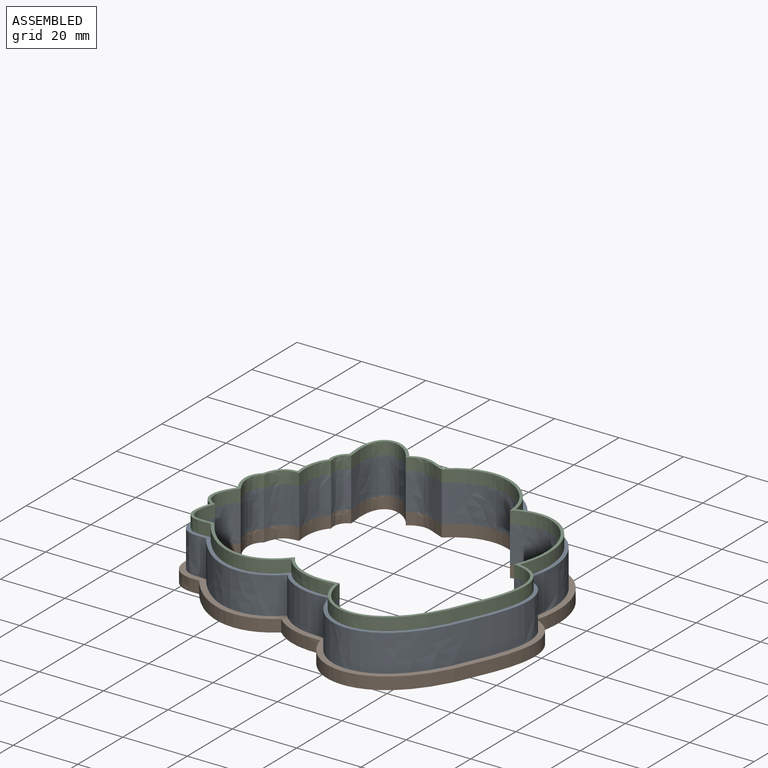
[diagram: assembled view]
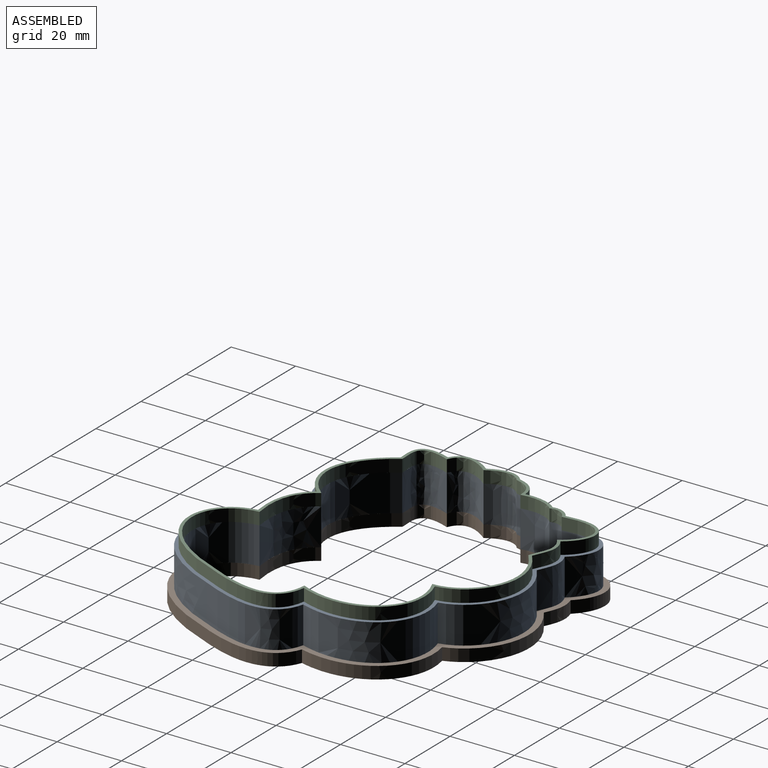
[diagram: assembled view, second angle]
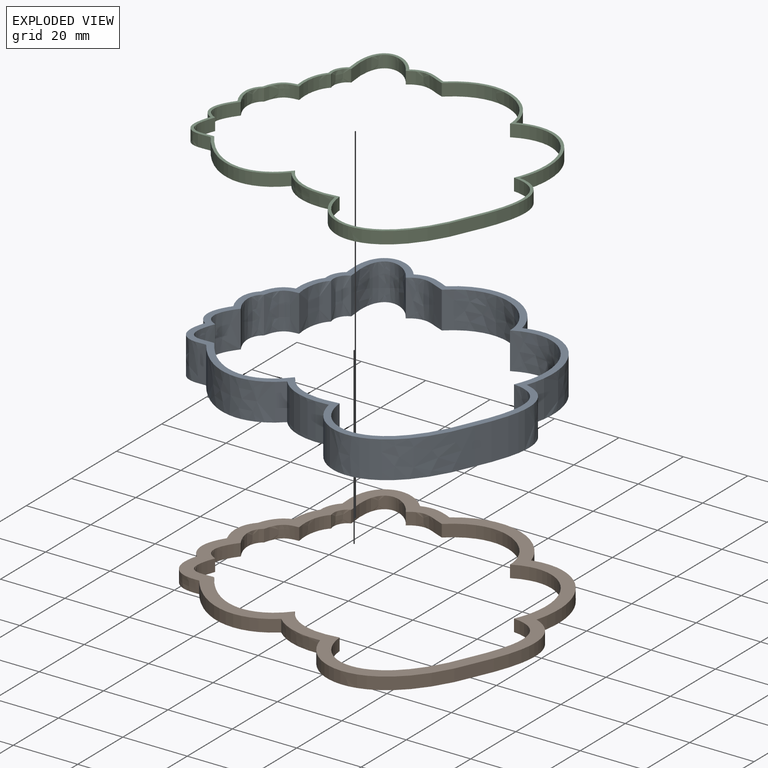
[diagram: exploded view]
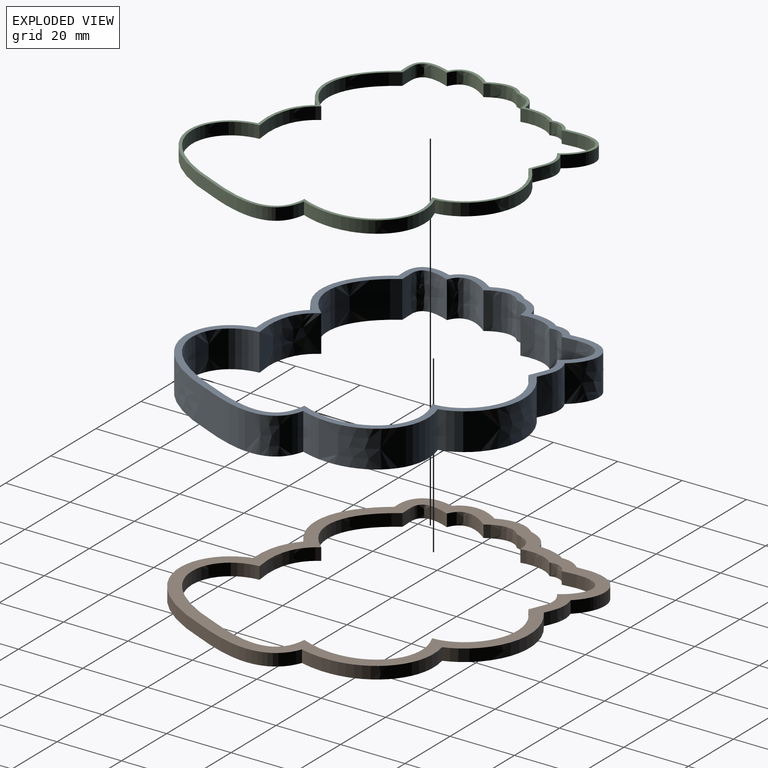
[diagram: exploded view, second angle]
ASSEMBLY  parts=3 mates=2
PART A: 30 faces, bbox 99.5x95.9x11.6 mm
  f0: plane 99.53x95.86mm, normal (0,0,1), area 668mm2, adj f2,f3,f4,f5,f6,f7,f8,f9
  f1: plane 99.53x95.86mm, normal (0,0,-1), area 668mm2, adj f2,f3,f4,f5,f6,f7,f8,f9
  f2: extruded ~30.38x14.27mm, area 438.5mm2, adj f0,f1,f3,f15
  f3: extruded ~11.43x10.74mm, area 129.2mm2, adj f0,f1,f2,f4
  f4: extruded ~15.04x13.48mm, area 308.3mm2, adj f0,f1,f3,f5
  f5: extruded ~11.43x6mm, area 77.6mm2, adj f0,f1,f4,f6
  f6: extruded ~11.43x9.5mm, area 114.6mm2, adj f0,f1,f5,f7
  f7: extruded ~11.43x6.55mm, area 110.6mm2, adj f0,f1,f6,f8
  f8: extruded ~11.43x11.3mm, area 139.8mm2, adj f0,f1,f7,f9
  f9: extruded ~12.47x11.43mm, area 161.5mm2, adj f0,f1,f8,f10
  f10: extruded ~11.43x10.59mm, area 195.5mm2, adj f0,f1,f9,f11
  f11: extruded ~29.56x11.5mm, area 402.9mm2, adj f0,f1,f10,f12
  f12: extruded ~16.78x11.43mm, area 210.3mm2, adj f0,f1,f11,f13
  f13: extruded ~37.54x23.01mm, area 629.1mm2, adj f0,f1,f12,f14
  f14: extruded ~27.78x11.43mm, area 373.2mm2, adj f0,f1,f13,f15
  f15: extruded ~28.37x22.2mm, area 496.2mm2, adj f0,f1,f2,f14
  f16: extruded ~28.23x15.17mm, area 432.9mm2, adj f0,f1,f17,f29
  f17: extruded ~11.7x11.43mm, area 143.6mm2, adj f0,f1,f16,f18
  f18: extruded ~12.55x12.46mm, area 284.5mm2, adj f0,f1,f17,f19
  f19: extruded ~11.43x5.47mm, area 75.8mm2, adj f0,f1,f18,f20
  f20: extruded ~11.43x10.72mm, area 130.6mm2, adj f0,f1,f19,f21
  f21: extruded ~11.43x6.78mm, area 114mm2, adj f0,f1,f20,f22
  f22: extruded ~11.43x10.29mm, area 130mm2, adj f0,f1,f21,f23
  f23: extruded ~11.43x11.38mm, area 157.2mm2, adj f0,f1,f22,f24
  f24: extruded ~11.43x9.51mm, area 183.6mm2, adj f0,f1,f23,f25
  f25: extruded ~28.63x11.47mm, area 401.2mm2, adj f0,f1,f24,f26
  f26: extruded ~18.34x11.43mm, area 237mm2, adj f0,f1,f25,f27
  f27: extruded ~33.92x21.78mm, area 591.8mm2, adj f0,f1,f26,f28
  f28: extruded ~25.39x11.43mm, area 360mm2, adj f0,f1,f27,f29
  f29: extruded ~27.94x21.89mm, area 501.9mm2, adj f0,f1,f16,f28
PART B: 30 faces, bbox 103.2x97.5x4 mm
  f0: plane 103.18x97.51mm, normal (0,0,1), area 1263.2mm2, adj f2,f3,f4,f5,f6,f7,f8,f9
  f1: plane 103.18x97.51mm, normal (0,0,-1), area 1263.2mm2, adj f2,f3,f4,f5,f6,f7,f8,f9
  f2: extruded ~31.89x13.82mm, area 148.5mm2, adj f0,f1,f3,f15
  f3: extruded ~10x3.81mm, area 39.6mm2, adj f0,f1,f2,f4
  f4: extruded ~17.29x14.54mm, area 111.4mm2, adj f0,f1,f3,f5
  f5: extruded ~6.21x3.81mm, area 26.1mm2, adj f0,f1,f4,f6
  f6: extruded ~8.63x3.81mm, area 34.7mm2, adj f0,f1,f5,f7
  f7: extruded ~6.97x6.06mm, area 36.7mm2, adj f0,f1,f6,f8
  f8: extruded ~12.11x3.81mm, area 49.3mm2, adj f0,f1,f7,f9
  f9: extruded ~13.25x3.81mm, area 55.4mm2, adj f0,f1,f8,f10
  f10: extruded ~11.74x9.57mm, area 69.8mm2, adj f0,f1,f9,f11
  f11: extruded ~30.35x11.44mm, area 135.4mm2, adj f0,f1,f10,f12
  f12: extruded ~15.49x4.92mm, area 63.7mm2, adj f0,f1,f11,f13
  f13: extruded ~40.56x24.11mm, area 220.8mm2, adj f0,f1,f12,f14
  f14: extruded ~29.66x7.73mm, area 128.9mm2, adj f0,f1,f13,f15
  f15: extruded ~28.97x22.72mm, area 166.2mm2, adj f0,f1,f2,f14
  f16: extruded ~28.23x15.17mm, area 144.3mm2, adj f0,f1,f17,f29
  f17: extruded ~11.7x3.81mm, area 47.9mm2, adj f0,f1,f16,f18
  f18: extruded ~12.55x12.46mm, area 94.8mm2, adj f0,f1,f17,f19
  f19: extruded ~5.47x3.81mm, area 25.3mm2, adj f0,f1,f18,f20
  f20: extruded ~10.72x3.81mm, area 43.5mm2, adj f0,f1,f19,f21
  f21: extruded ~6.78x5.91mm, area 38mm2, adj f0,f1,f20,f22
  f22: extruded ~10.29x3.81mm, area 43.3mm2, adj f0,f1,f21,f23
  f23: extruded ~11.38x3.81mm, area 52.4mm2, adj f0,f1,f22,f24
  f24: extruded ~9.51x7.76mm, area 61.2mm2, adj f0,f1,f23,f25
  f25: extruded ~28.63x11.47mm, area 133.7mm2, adj f0,f1,f24,f26
  f26: extruded ~18.34x6.8mm, area 79mm2, adj f0,f1,f25,f27
  f27: extruded ~33.92x21.78mm, area 197.3mm2, adj f0,f1,f26,f28
  f28: extruded ~25.39x8.97mm, area 120mm2, adj f0,f1,f27,f29
  f29: extruded ~27.94x21.89mm, area 167.3mm2, adj f0,f1,f16,f28
PART C: 30 faces, bbox 97.9x95.9x4 mm
  f0: plane 97.94x95.88mm, normal (0,0,1), area 291.8mm2, adj f2,f3,f4,f5,f6,f7,f8,f9
  f1: plane 97.94x95.88mm, normal (0,0,-1), area 291.8mm2, adj f2,f3,f4,f5,f6,f7,f8,f9
  f2: extruded ~29.25x14.7mm, area 144.9mm2, adj f0,f1,f3,f15
  f3: extruded ~11.26x3.81mm, area 45.6mm2, adj f0,f1,f2,f4
  f4: extruded ~13.59x12.9mm, area 97.9mm2, adj f0,f1,f3,f5
  f5: extruded ~5.76x3.81mm, area 25.5mm2, adj f0,f1,f4,f6
  f6: extruded ~10.17x3.81mm, area 41mm2, adj f0,f1,f5,f7
  f7: extruded ~6.54x6.2mm, area 37.3mm2, adj f0,f1,f6,f8
  f8: extruded ~10.75x3.81mm, area 44.8mm2, adj f0,f1,f7,f9
  f9: extruded ~11.89x3.81mm, area 53mm2, adj f0,f1,f8,f10
  f10: extruded ~9.95x8.14mm, area 62.7mm2, adj f0,f1,f9,f11
  f11: extruded ~29.04x11.5mm, area 133.9mm2, adj f0,f1,f10,f12
  f12: extruded ~17.64x6.22mm, area 74.8mm2, adj f0,f1,f11,f13
  f13: extruded ~35.53x22.32mm, area 202.6mm2, adj f0,f1,f12,f14
  f14: extruded ~26.47x8.58mm, area 121.8mm2, adj f0,f1,f13,f15
  f15: extruded ~28.1x21.96mm, area 165.9mm2, adj f0,f1,f2,f14
  f16: extruded ~28.23x15.17mm, area 144.3mm2, adj f0,f1,f17,f29
  f17: extruded ~11.7x3.81mm, area 47.9mm2, adj f0,f1,f16,f18
  f18: extruded ~12.55x12.46mm, area 94.8mm2, adj f0,f1,f17,f19
  f19: extruded ~5.47x3.81mm, area 25.3mm2, adj f0,f1,f18,f20
  f20: extruded ~10.72x3.81mm, area 43.5mm2, adj f0,f1,f19,f21
  f21: extruded ~6.78x5.91mm, area 38mm2, adj f0,f1,f20,f22
  f22: extruded ~10.29x3.81mm, area 43.3mm2, adj f0,f1,f21,f23
  f23: extruded ~11.38x3.81mm, area 52.4mm2, adj f0,f1,f22,f24
  f24: extruded ~9.51x7.76mm, area 61.2mm2, adj f0,f1,f23,f25
  f25: extruded ~28.63x11.47mm, area 133.7mm2, adj f0,f1,f24,f26
  f26: extruded ~18.34x6.8mm, area 79mm2, adj f0,f1,f25,f27
  f27: extruded ~33.92x21.78mm, area 197.3mm2, adj f0,f1,f26,f28
  f28: extruded ~25.39x8.97mm, area 120mm2, adj f0,f1,f27,f29
  f29: extruded ~27.94x21.89mm, area 167.3mm2, adj f0,f1,f16,f28
PLACE A t=(200.86,0.89,3.81)mm
PLACE B at identity
PLACE C t=(102.32,-1.62,15.24)mm
MATE fastened A.f1 <-> B.f0  axis (0,0,1) through (77.29,29.33,3.81)mm
MATE fastened C.f1 <-> A.f0  axis (0,0,1) through (77.29,29.33,15.24)mm
